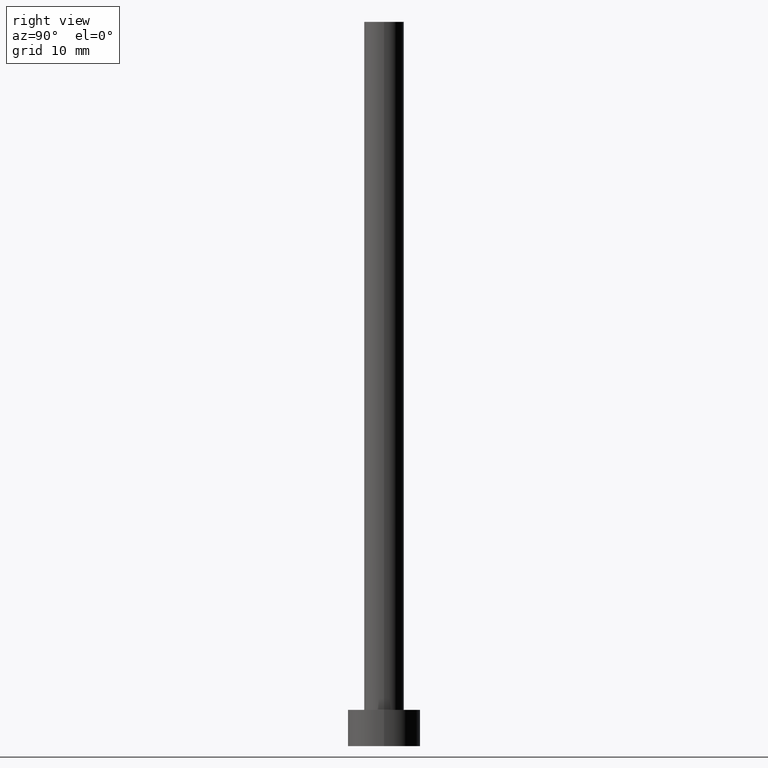
[diagram: clean part render]
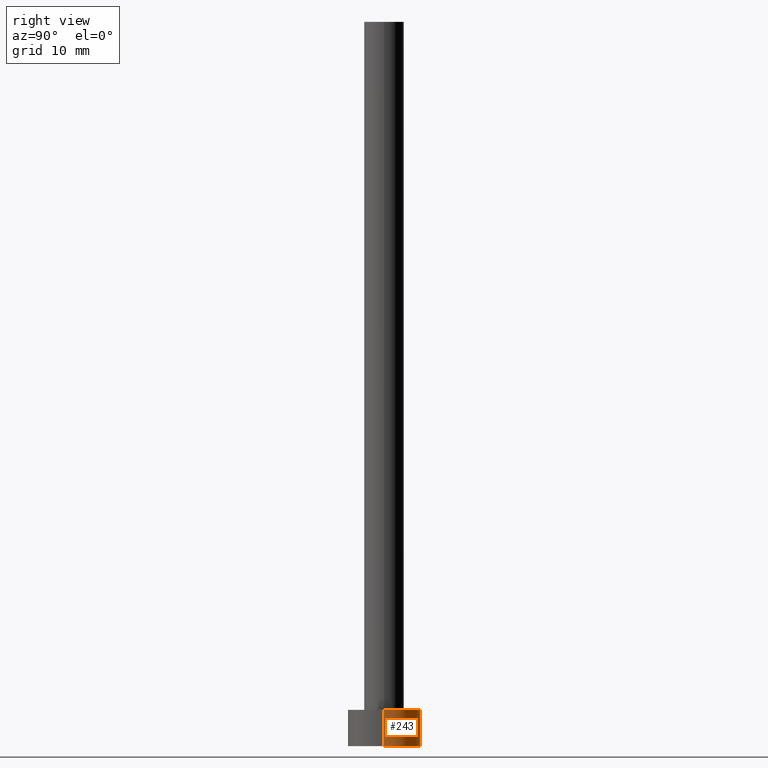
[diagram: same view with one face highlighted and labeled with its STEP entity id]
A machine part, right view. The second image highlights one B-rep face of the part: STEP entity #243.
In plain terms, the highlighted cylindrical surface (edge-blend (fillet) strip) has radius 5 mm, axis along (-0, -0, -1).
Its self-contained STEP definition (entity closure, byte-faithful):
#15 = ORIENTED_EDGE ( 'NONE', *, *, #176, .T. ) ;
#19 = EDGE_CURVE ( 'NONE', #38, #91, #144, .T. ) ;
#22 = CARTESIAN_POINT ( 'NONE',  ( 0.000000000000000000, 0.000000000000000000, 5.000000000000000000 ) ) ;
#23 = CIRCLE ( 'NONE', #162, 5.000000000000000000 ) ;
#36 = ORIENTED_EDGE ( 'NONE', *, *, #217, .F. ) ;
#38 = VERTEX_POINT ( 'NONE', #39 ) ;
#39 = CARTESIAN_POINT ( 'NONE',  ( 5.000000000000000000, 6.123233995736766282E-16, 0.000000000000000000 ) ) ;
#50 = DIRECTION ( 'NONE',  ( 1.000000000000000000, 0.000000000000000000, 0.000000000000000000 ) ) ;
#66 = LINE ( 'NONE', #68, #254 ) ;
#68 = CARTESIAN_POINT ( 'NONE',  ( -5.000000000000000000, 0.000000000000000000, 5.000000000000000000 ) ) ;
#75 = CARTESIAN_POINT ( 'NONE',  ( -5.000000000000000000, 0.000000000000000000, 5.000000000000000000 ) ) ;
#77 = ORIENTED_EDGE ( 'NONE', *, *, #125, .F. ) ;
#83 = EDGE_LOOP ( 'NONE', ( #36, #15, #120, #77 ) ) ;
#85 = DIRECTION ( 'NONE',  ( -0.000000000000000000, -0.000000000000000000, -1.000000000000000000 ) ) ;
#91 = VERTEX_POINT ( 'NONE', #190 ) ;
#92 = CYLINDRICAL_SURFACE ( 'NONE', #180, 5.000000000000000000 ) ;
#93 = AXIS2_PLACEMENT_3D ( 'NONE', #110, #170, #240 ) ;
#97 = DIRECTION ( 'NONE',  ( 0.000000000000000000, 0.000000000000000000, 1.000000000000000000 ) ) ;
#110 = CARTESIAN_POINT ( 'NONE',  ( 0.000000000000000000, 0.000000000000000000, 0.000000000000000000 ) ) ;
#120 = ORIENTED_EDGE ( 'NONE', *, *, #19, .T. ) ;
#125 = EDGE_CURVE ( 'NONE', #220, #91, #66, .T. ) ;
#129 = CARTESIAN_POINT ( 'NONE',  ( 0.000000000000000000, 0.000000000000000000, 5.000000000000000000 ) ) ;
#135 = DIRECTION ( 'NONE',  ( -1.000000000000000000, 0.000000000000000000, 0.000000000000000000 ) ) ;
#144 = CIRCLE ( 'NONE', #93, 5.000000000000000000 ) ;
#160 = DIRECTION ( 'NONE',  ( -0.000000000000000000, -0.000000000000000000, -1.000000000000000000 ) ) ;
#162 = AXIS2_PLACEMENT_3D ( 'NONE', #129, #97, #50 ) ;
#170 = DIRECTION ( 'NONE',  ( 0.000000000000000000, 0.000000000000000000, 1.000000000000000000 ) ) ;
#172 = CARTESIAN_POINT ( 'NONE',  ( 5.000000000000000000, 6.123233995736766282E-16, 5.000000000000000000 ) ) ;
#176 = EDGE_CURVE ( 'NONE', #187, #38, #193, .T. ) ;
#180 = AXIS2_PLACEMENT_3D ( 'NONE', #22, #160, #135 ) ;
#187 = VERTEX_POINT ( 'NONE', #172 ) ;
#189 = VECTOR ( 'NONE', #221, 1000.000000000000000 ) ;
#190 = CARTESIAN_POINT ( 'NONE',  ( -5.000000000000000000, 0.000000000000000000, 0.000000000000000000 ) ) ;
#193 = LINE ( 'NONE', #207, #189 ) ;
#207 = CARTESIAN_POINT ( 'NONE',  ( 5.000000000000000000, 6.123233995736766282E-16, 5.000000000000000000 ) ) ;
#217 = EDGE_CURVE ( 'NONE', #187, #220, #23, .T. ) ;
#220 = VERTEX_POINT ( 'NONE', #75 ) ;
#221 = DIRECTION ( 'NONE',  ( -0.000000000000000000, -0.000000000000000000, -1.000000000000000000 ) ) ;
#234 = FACE_OUTER_BOUND ( 'NONE', #83, .T. ) ;
#240 = DIRECTION ( 'NONE',  ( 1.000000000000000000, 0.000000000000000000, 0.000000000000000000 ) ) ;
#243 = ADVANCED_FACE ( 'NONE', ( #234 ), #92, .T. ) ;
#254 = VECTOR ( 'NONE', #85, 1000.000000000000000 ) ;